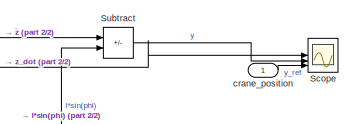
[diagram: root canvas - part 1/2, top right region]
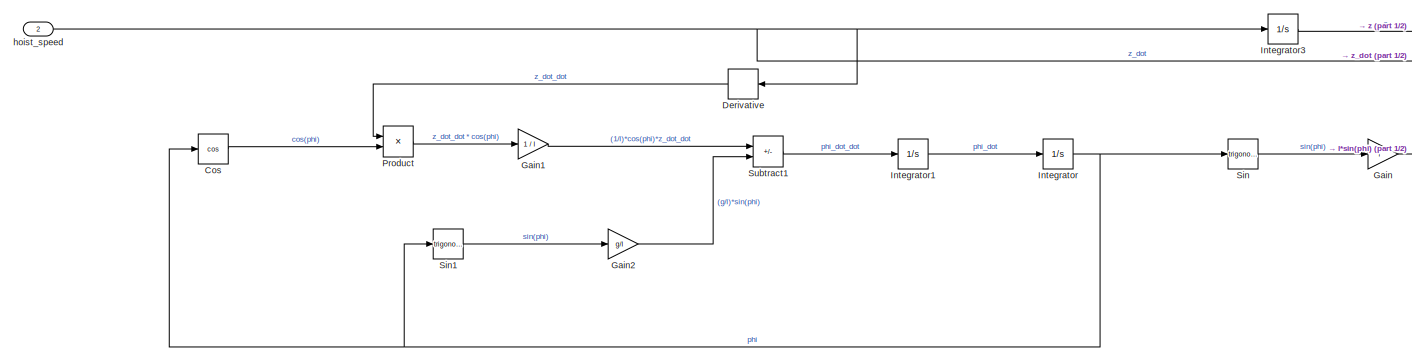
[diagram: root canvas - part 2/2, most of the canvas]
MODEL slx_10c8833bf90b
KIND model
CONFIG AbsTol = auto
CONFIG EnableMultiTasking = off
CONFIG FixedStep = auto
CONFIG MaxStep = auto
CONFIG MinStep = auto
CONFIG RelTol = 1e-3
CONFIG SampleTimeConstraint = Unconstrained
CONFIG SolverName = VariableStepAuto
CONFIG StartTime = 0.0
CONFIG StopTime = 10
WORKSPACE source: mxarray member
WORKSPACE g: Simulink.Parameter (value not decoded)
WORKSPACE l: Simulink.Parameter (value not decoded)
BLOCK [Trigonometry] Cos
  Operator = cos
BLOCK [Derivative] Derivative
BLOCK [Gain] Gain
  Gain = l
BLOCK [Gain] Gain1
  Gain = 1 / l
BLOCK [Gain] Gain2
  Gain = g/l
BLOCK [Integrator] Integrator
BLOCK [Integrator] Integrator1
BLOCK [Integrator] Integrator3
BLOCK [Product] Product
BLOCK [Scope] Scope
  Floating = off
  NumInputPorts = 4
  ScopeSpecificationString = Simulink.scopes.TimeScopeBlockCfg('CurrentConfiguration', extmgr.ConfigurationSet(extmgr.Configuration('Core','General UI',true),extmgr.Configuration('Core','Source UI',true),extmgr.Configuration('Sources','WiredSimulink',true),extmgr.Configuration('Visuals','Time Domain',true,'SerializedDisplays',{struct('MinYLimReal','-0.39884','MaxYLimReal','3.58954','YLabelReal','','MinYLimMag','0.00000','MaxY...<+1458ch>
BLOCK [Trigonometry] Sin
BLOCK [Trigonometry] Sin1
BLOCK [Sum] Subtract
  IconShape = rectangular
  Inputs = +-
BLOCK [Sum] Subtract1
  IconShape = rectangular
  Inputs = +-
BLOCK [Inport] crane_position
BLOCK [Inport] hoist_speed
  Port = 2
LINE Cos:1 -> Product:2
LINE Derivative:1 -> Product:1
LINE Gain1:1 -> Subtract1:1
LINE Gain2:1 -> Subtract1:2
LINE Gain:1 -> Subtract:2
LINE Integrator1:1 -> Integrator:1
LINE Integrator3:1 -> Subtract:1
NET Integrator:1 -> Cos:1, Sin1:1, Sin:1
LINE Product:1 -> Gain1:1
LINE Sin1:1 -> Gain2:1
LINE Sin:1 -> Gain:1
LINE Subtract1:1 -> Integrator1:1
LINE Subtract:1 -> Scope:2
LINE crane_position:1 -> Scope:4
NET hoist_speed:1 -> Derivative:1, Integrator3:1, Scope:1
note: NET lines group one-source signal fan-out (src -> all destinations, sorted); 1:1 wires keep LINE
